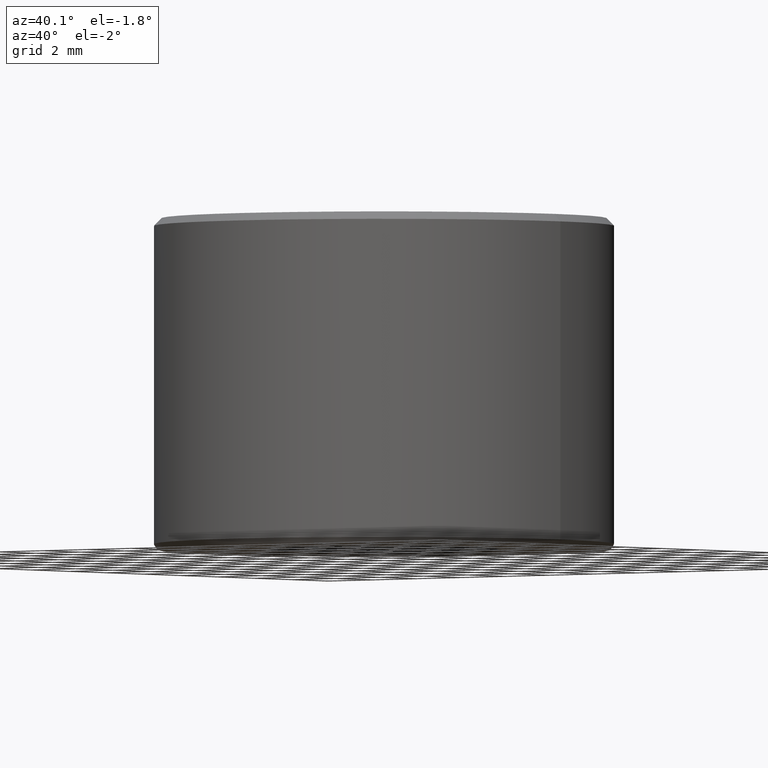
[diagram: clean part render]
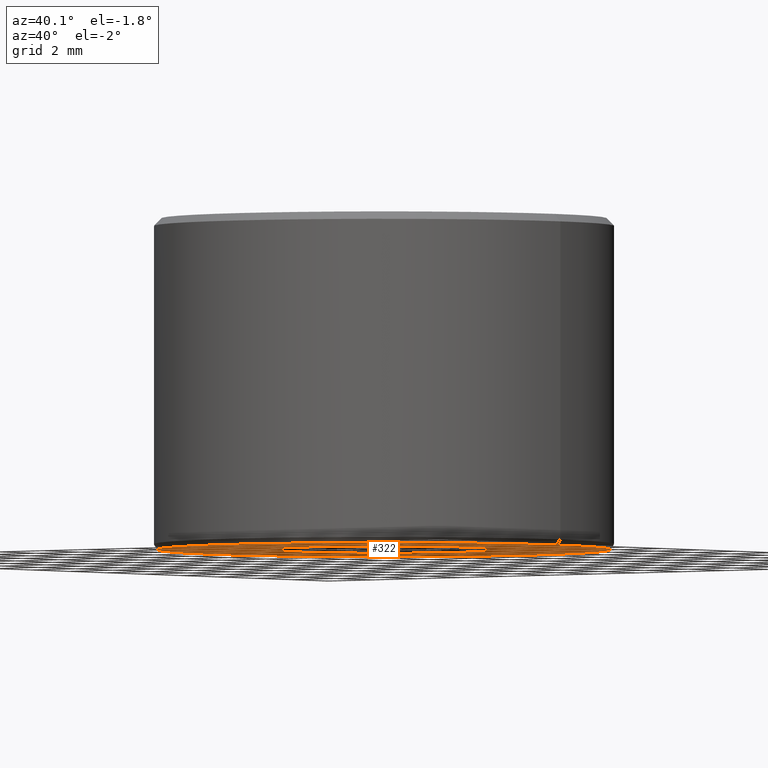
[diagram: same view with one face highlighted and labeled with its STEP entity id]
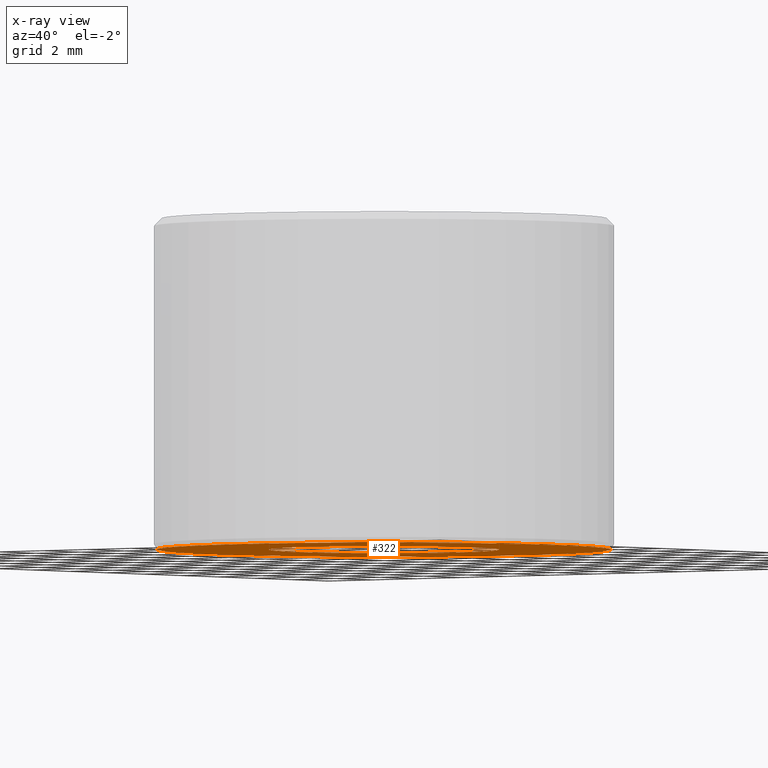
[diagram: x-ray of the same camera — body ghosted, the highlighted face saturated]
A machine part, auxiliary view. The second image highlights one B-rep face of the part: STEP entity #322.
The next image is the same camera in x-ray: the body ghosted, the highlighted face saturated — about 0% of this face is hidden behind the body in this view.
In plain terms, the highlighted planar face has unit normal (0, -0, 1).
Its self-contained STEP definition (entity closure, byte-faithful):
#14 = CARTESIAN_POINT ( 'NONE',  ( 0.0000000000000000000, 0.0000000000000000000, -1.942890293094023900E-013 ) ) ;
#16 = AXIS2_PLACEMENT_3D ( 'NONE', #87, #120, #279 ) ;
#47 = DIRECTION ( 'NONE',  ( -0.0000000000000000000, -0.0000000000000000000, 1.000000000000000000 ) ) ;
#49 = CARTESIAN_POINT ( 'NONE',  ( 0.0000000000000000000, 0.0000000000000000000, -1.942890293094023900E-013 ) ) ;
#66 = CARTESIAN_POINT ( 'NONE',  ( 4.000000000000000000, 0.0000000000000000000, -1.942890293094023900E-013 ) ) ;
#71 = DIRECTION ( 'NONE',  ( -0.0000000000000000000, -0.0000000000000000000, 1.000000000000000000 ) ) ;
#79 = CIRCLE ( 'NONE', #175, 4.000000000000000000 ) ;
#80 = ORIENTED_EDGE ( 'NONE', *, *, #249, .T. ) ;
#87 = CARTESIAN_POINT ( 'NONE',  ( 0.0000000000000000000, 7.876901570977517000, -1.977277731909836800E-013 ) ) ;
#89 = DIRECTION ( 'NONE',  ( -0.0000000000000000000, -0.0000000000000000000, 1.000000000000000000 ) ) ;
#103 = DIRECTION ( 'NONE',  ( -0.0000000000000000000, -0.0000000000000000000, 1.000000000000000000 ) ) ;
#105 = DIRECTION ( 'NONE',  ( 1.000000000000000000, 0.0000000000000000000, 0.0000000000000000000 ) ) ;
#108 = CIRCLE ( 'NONE', #173, 7.876901570977517000 ) ;
#116 = AXIS2_PLACEMENT_3D ( 'NONE', #256, #89, #275 ) ;
#120 = DIRECTION ( 'NONE',  ( 0.0000000000000000000, -0.0000000000000000000, 1.000000000000000000 ) ) ;
#122 = PLANE ( 'NONE',  #16 ) ;
#128 = ORIENTED_EDGE ( 'NONE', *, *, #203, .T. ) ;
#151 = CIRCLE ( 'NONE', #225, 4.000000000000000000 ) ;
#156 = VERTEX_POINT ( 'NONE', #285 ) ;
#173 = AXIS2_PLACEMENT_3D ( 'NONE', #14, #47, #105 ) ;
#175 = AXIS2_PLACEMENT_3D ( 'NONE', #49, #103, #291 ) ;
#183 = VERTEX_POINT ( 'NONE', #314 ) ;
#191 = ORIENTED_EDGE ( 'NONE', *, *, #300, .F. ) ;
#192 = CARTESIAN_POINT ( 'NONE',  ( 0.0000000000000000000, 0.0000000000000000000, -1.942890293094023900E-013 ) ) ;
#203 = EDGE_CURVE ( 'NONE', #286, #238, #151, .T. ) ;
#213 = EDGE_LOOP ( 'NONE', ( #344, #191 ) ) ;
#225 = AXIS2_PLACEMENT_3D ( 'NONE', #192, #71, #320 ) ;
#238 = VERTEX_POINT ( 'NONE', #66 ) ;
#249 = EDGE_CURVE ( 'NONE', #238, #286, #79, .T. ) ;
#252 = FACE_OUTER_BOUND ( 'NONE', #213, .T. ) ;
#256 = CARTESIAN_POINT ( 'NONE',  ( 0.0000000000000000000, 0.0000000000000000000, -1.942890293094023900E-013 ) ) ;
#260 = CIRCLE ( 'NONE', #116, 7.876901570977517000 ) ;
#275 = DIRECTION ( 'NONE',  ( 1.000000000000000000, 0.0000000000000000000, 0.0000000000000000000 ) ) ;
#279 = DIRECTION ( 'NONE',  ( 1.000000000000000000, 0.0000000000000000000, 0.0000000000000000000 ) ) ;
#285 = CARTESIAN_POINT ( 'NONE',  ( -7.876901570977517000, 9.721798344637599500E-016, -1.942890293094023900E-013 ) ) ;
#286 = VERTEX_POINT ( 'NONE', #340 ) ;
#291 = DIRECTION ( 'NONE',  ( 1.000000000000000000, 0.0000000000000000000, 0.0000000000000000000 ) ) ;
#300 = EDGE_CURVE ( 'NONE', #156, #183, #260, .T. ) ;
#302 = EDGE_LOOP ( 'NONE', ( #80, #128 ) ) ;
#314 = CARTESIAN_POINT ( 'NONE',  ( 7.876901570977517000, 0.0000000000000000000, -1.942890293094023900E-013 ) ) ;
#320 = DIRECTION ( 'NONE',  ( 1.000000000000000000, 0.0000000000000000000, 0.0000000000000000000 ) ) ;
#322 = ADVANCED_FACE ( 'NONE', ( #252, #329 ), #122, .F. ) ;
#325 = EDGE_CURVE ( 'NONE', #183, #156, #108, .T. ) ;
#329 = FACE_BOUND ( 'NONE', #302, .T. ) ;
#340 = CARTESIAN_POINT ( 'NONE',  ( -4.000000000000000000, 4.898587196589412800E-016, -1.942890293094023900E-013 ) ) ;
#344 = ORIENTED_EDGE ( 'NONE', *, *, #325, .F. ) ;